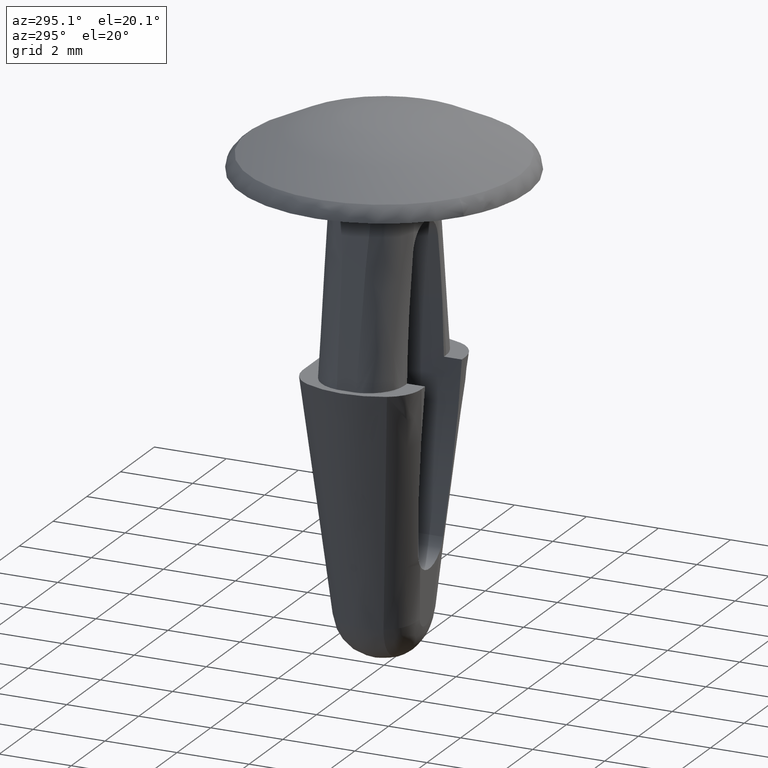
[diagram: clean part render]
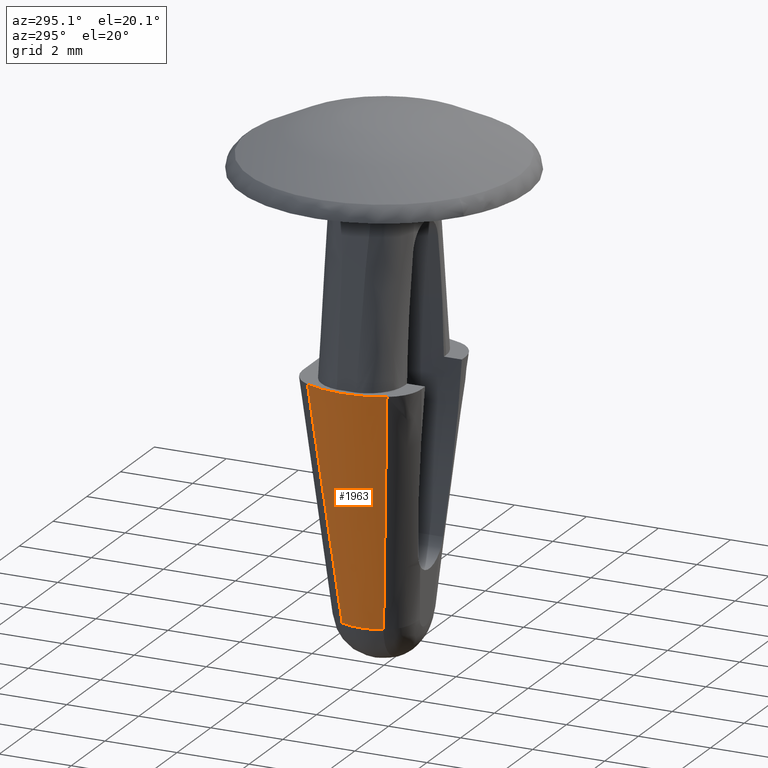
[diagram: same view with one face highlighted and labeled with its STEP entity id]
A machine part, auxiliary view. The second image highlights one B-rep face of the part: STEP entity #1963.
In plain terms, the highlighted face is a freeform B-spline surface patch.
Its self-contained STEP definition (entity closure, byte-faithful):
#283=CARTESIAN_POINT('',(-1.256781387603042,-0.575183798429341,-11.822860999999900));
#284=VERTEX_POINT('',#283);
#1447=CARTESIAN_POINT('',(-1.256781387603042,0.575183798429341,-11.822860999999900));
#1448=VERTEX_POINT('',#1447);
#1462=CARTESIAN_POINT('',(-2.187187684470745,1.103954225908190,-5.199997000000000));
#1463=VERTEX_POINT('',#1462);
#1464=CARTESIAN_POINT('',(-2.187187684470745,1.103954225908190,-5.199997000000000));
#1465=CARTESIAN_POINT('',(-2.030211061344898,1.019958232192982,-6.303871857066040));
#1466=CARTESIAN_POINT('',(-1.873419788706163,0.935588172304035,-7.407747875589784));
#1467=CARTESIAN_POINT('',(-1.639572474086669,0.806199988975500,-9.063519005477952));
#1468=CARTESIAN_POINT('',(-1.561841157420682,0.762614410312500,-9.615436095551845));
#1469=CARTESIAN_POINT('',(-1.446189955178250,0.695164795904066,-10.443275651795620));
#1470=CARTESIAN_POINT('',(-1.407800679788767,0.672329297828130,-10.719216070495920));
#1471=CARTESIAN_POINT('',(-1.331649044906861,0.625239841445523,-11.271069293941689));
#1472=CARTESIAN_POINT('',(-1.293866757772561,0.601040080285087,-11.546983749713460));
#1473=CARTESIAN_POINT('',(-1.256781387603042,0.575183798429341,-11.822860999999900));
#1474=B_SPLINE_CURVE_WITH_KNOTS('',3,(#1464,#1465,#1466,#1467,#1468,#1469,#1470,#1471,#1472,#1473),.UNSPECIFIED.,.F.,.U.,(4,2,2,2,4),(0.0,0.500000000000000,0.750000000000000,0.875000000000000,1.0),.UNSPECIFIED.);
#1475=EDGE_CURVE('',#1463,#1448,#1474,.T.);
#1900=CARTESIAN_POINT('',(-1.256781387603042,-0.575183798429341,-11.822860999999900));
#1901=CARTESIAN_POINT('',(-1.520022397725402,-2.168404E-016,-11.822860999999904));
#1902=CARTESIAN_POINT('',(-1.256781387603042,0.575183798429341,-11.822860999999900));
#1910=(BOUNDED_CURVE()B_SPLINE_CURVE(2,(#1900,#1901,#1902),.UNSPECIFIED.,.F.,.U.)CURVE()GEOMETRIC_REPRESENTATION_ITEM()QUASI_UNIFORM_CURVE()RATIONAL_B_SPLINE_CURVE((1.0,0.909295153853189,1.0))REPRESENTATION_ITEM(''));
#1911=EDGE_CURVE('',#284,#1448,#1910,.T.);
#1917=CARTESIAN_POINT('',(-1.204676467239859,-0.621294319317167,-11.988432599999900));
#1918=CARTESIAN_POINT('',(-2.201790563326782,-1.135541372743279,-5.030286110000001));
#1919=CARTESIAN_POINT('',(-1.539503262727333,0.027927713757921,-11.988432599999898));
#1920=CARTESIAN_POINT('',(-2.813754438027823,0.051043560889314,-5.030286110000001));
#1921=CARTESIAN_POINT('',(-1.181349793570323,0.664578578626068,-11.988432599999900));
#1922=CARTESIAN_POINT('',(-2.159156336332156,1.214652135075413,-5.030286110000001));
#1930=(BOUNDED_SURFACE()B_SPLINE_SURFACE(1,2,((#1917,#1919,#1921),(#1918,#1920,#1922)),.UNSPECIFIED.,.F.,.F.,.U.)B_SPLINE_SURFACE_WITH_KNOTS((2,2),(3,3),(0.0,7.048013133420693),(0.0,2.500213512371670),.UNSPECIFIED.)GEOMETRIC_REPRESENTATION_ITEM()RATIONAL_B_SPLINE_SURFACE(((1.0,0.879609765521125,0.998425063708734),(1.0,0.879609765521125,0.998425063708734)))REPRESENTATION_ITEM('')SURFACE());
#1931=ORIENTED_EDGE('',*,*,#1911,.F.);
#1932=CARTESIAN_POINT('',(-2.187187684470745,-1.103954225908190,-5.199997000000000));
#1933=VERTEX_POINT('',#1932);
#1934=CARTESIAN_POINT('',(-1.256781387603042,-0.575183798429341,-11.822860999999900));
#1935=CARTESIAN_POINT('',(-1.293865052893477,-0.601038891626759,-11.546996432271341));
#1936=CARTESIAN_POINT('',(-1.331646610852896,-0.625238291343110,-11.271087045080250));
#1937=CARTESIAN_POINT('',(-1.407797652813216,-0.672327471021337,-10.719237894178830));
#1938=CARTESIAN_POINT('',(-1.446187087985807,-0.695163103373907,-10.443296227359671));
#1939=CARTESIAN_POINT('',(-1.561839479392365,-0.762613472333986,-9.615448003011256));
#1940=CARTESIAN_POINT('',(-1.639571894436228,-0.806199666844263,-9.063523113437693));
#1941=CARTESIAN_POINT('',(-1.873420227966273,-0.935588418165569,-7.407744757969434));
#1942=CARTESIAN_POINT('',(-2.030211009989235,-1.019958204713285,-6.303872218204051));
#1943=CARTESIAN_POINT('',(-2.187187684470745,-1.103954225908190,-5.199997000000000));
#1944=B_SPLINE_CURVE_WITH_KNOTS('',3,(#1934,#1935,#1936,#1937,#1938,#1939,#1940,#1941,#1942,#1943),.UNSPECIFIED.,.F.,.U.,(4,2,2,2,4),(0.0,0.125000000000000,0.250000000000000,0.500000000000000,1.0),.UNSPECIFIED.);
#1945=EDGE_CURVE('',#284,#1933,#1944,.T.);
#1946=ORIENTED_EDGE('',*,*,#1945,.T.);
#1947=CARTESIAN_POINT('',(-2.187187684470735,-1.103954225908187,-5.199997000000000));
#1948=CARTESIAN_POINT('',(-2.744394064862116,-1.084202E-015,-5.199997000000000));
#1949=CARTESIAN_POINT('',(-2.187187684470735,1.103954225908185,-5.199997000000000));
#1957=(BOUNDED_CURVE()B_SPLINE_CURVE(2,(#1947,#1948,#1949),.UNSPECIFIED.,.F.,.U.)CURVE()GEOMETRIC_REPRESENTATION_ITEM()QUASI_UNIFORM_CURVE()RATIONAL_B_SPLINE_CURVE((1.0,0.892729302751605,1.0))REPRESENTATION_ITEM(''));
#1958=EDGE_CURVE('',#1933,#1463,#1957,.T.);
#1959=ORIENTED_EDGE('',*,*,#1958,.T.);
#1960=ORIENTED_EDGE('',*,*,#1475,.T.);
#1961=EDGE_LOOP('',(#1931,#1946,#1959,#1960));
#1962=FACE_OUTER_BOUND('',#1961,.T.);
#1963=ADVANCED_FACE('',(#1962),#1930,.T.);